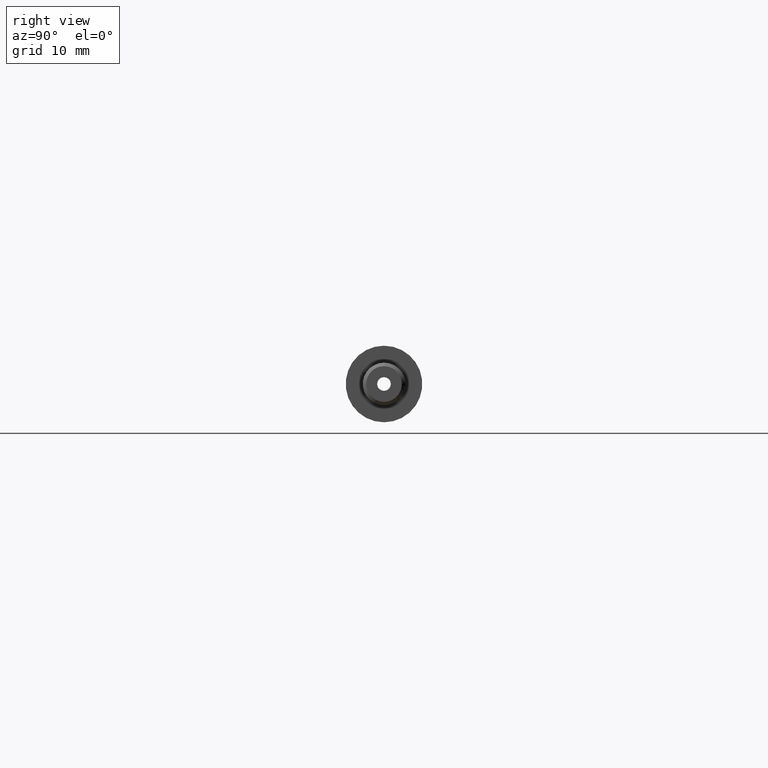
[diagram: clean part render]
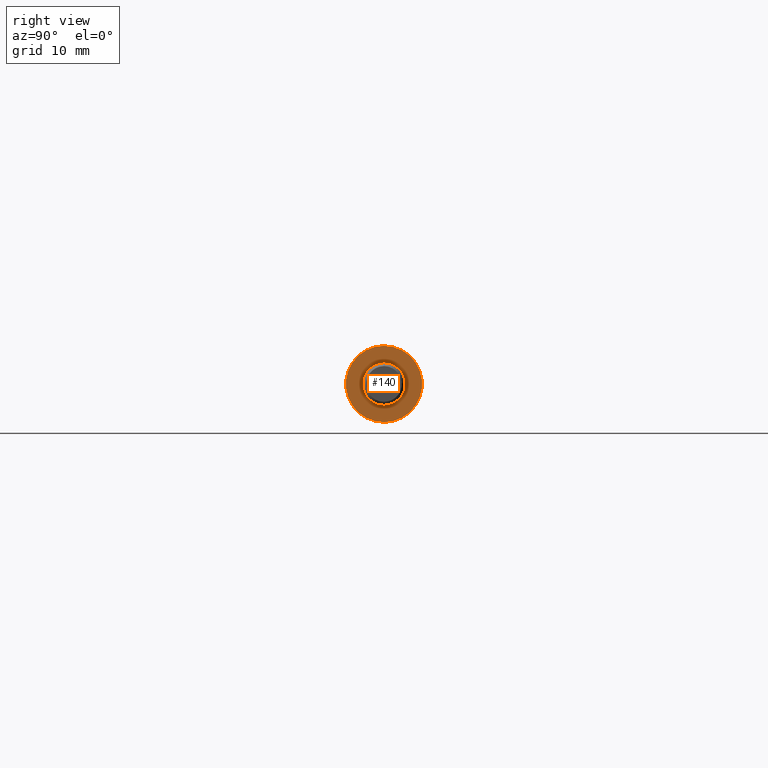
[diagram: same view with one face highlighted and labeled with its STEP entity id]
A machine part, right view. The second image highlights one B-rep face of the part: STEP entity #140.
In plain terms, the highlighted planar face has unit normal (1, 0, 0).
Its self-contained STEP definition (entity closure, byte-faithful):
#19 = DIRECTION ( 'NONE',  ( 1.000000000000000000, -0.0000000000000000000, -0.0000000000000000000 ) ) ;
#20 = CARTESIAN_POINT ( 'NONE',  ( 0.0000000000000000000, 0.0000000000000000000, 0.0000000000000000000 ) ) ;
#22 = CARTESIAN_POINT ( 'NONE',  ( 0.0000000000000000000, 0.0000000000000000000, 0.0000000000000000000 ) ) ;
#24 = VERTEX_POINT ( 'NONE', #226 ) ;
#31 = DIRECTION ( 'NONE',  ( 1.000000000000000000, -0.0000000000000000000, -0.0000000000000000000 ) ) ;
#62 = DIRECTION ( 'NONE',  ( 0.0000000000000000000, 0.0000000000000000000, -1.000000000000000000 ) ) ;
#80 = ORIENTED_EDGE ( 'NONE', *, *, #415, .F. ) ;
#82 = EDGE_CURVE ( 'NONE', #472, #472, #452, .T. ) ;
#89 = CARTESIAN_POINT ( 'NONE',  ( 0.0000000000000000000, 0.0000000000000000000, -4.499999999999988500 ) ) ;
#139 = PLANE ( 'NONE',  #204 ) ;
#140 = ADVANCED_FACE ( 'NONE', ( #434, #548 ), #139, .T. ) ;
#151 = AXIS2_PLACEMENT_3D ( 'NONE', #22, #19, #62 ) ;
#204 = AXIS2_PLACEMENT_3D ( 'NONE', #495, #487, #443 ) ;
#226 = CARTESIAN_POINT ( 'NONE',  ( 0.0000000000000000000, 0.0000000000000000000, -2.499999999999998700 ) ) ;
#277 = EDGE_LOOP ( 'NONE', ( #80 ) ) ;
#354 = DIRECTION ( 'NONE',  ( 0.0000000000000000000, 0.0000000000000000000, -1.000000000000000000 ) ) ;
#415 = EDGE_CURVE ( 'NONE', #24, #24, #458, .T. ) ;
#416 = EDGE_LOOP ( 'NONE', ( #465 ) ) ;
#434 = FACE_OUTER_BOUND ( 'NONE', #416, .T. ) ;
#443 = DIRECTION ( 'NONE',  ( -0.0000000000000000000, 0.0000000000000000000, -1.000000000000000000 ) ) ;
#452 = CIRCLE ( 'NONE', #151, 4.499999999999988500 ) ;
#458 = CIRCLE ( 'NONE', #470, 2.499999999999998700 ) ;
#465 = ORIENTED_EDGE ( 'NONE', *, *, #82, .T. ) ;
#470 = AXIS2_PLACEMENT_3D ( 'NONE', #20, #31, #354 ) ;
#472 = VERTEX_POINT ( 'NONE', #89 ) ;
#487 = DIRECTION ( 'NONE',  ( 1.000000000000000000, 0.0000000000000000000, -0.0000000000000000000 ) ) ;
#495 = CARTESIAN_POINT ( 'NONE',  ( 0.0000000000000000000, 4.499999999999988500, 0.0000000000000000000 ) ) ;
#548 = FACE_BOUND ( 'NONE', #277, .T. ) ;